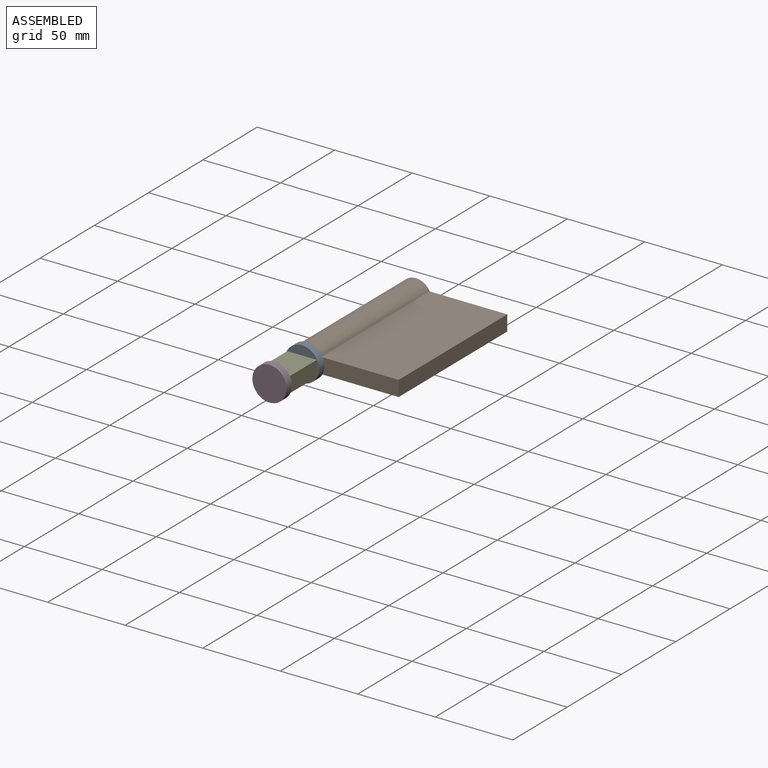
[diagram: assembled view]
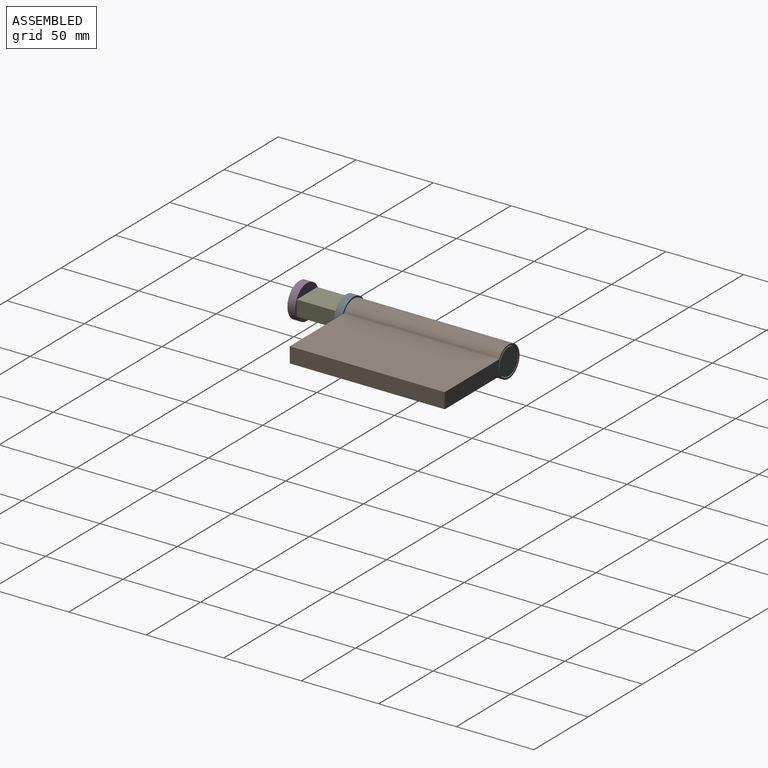
[diagram: assembled view, second angle]
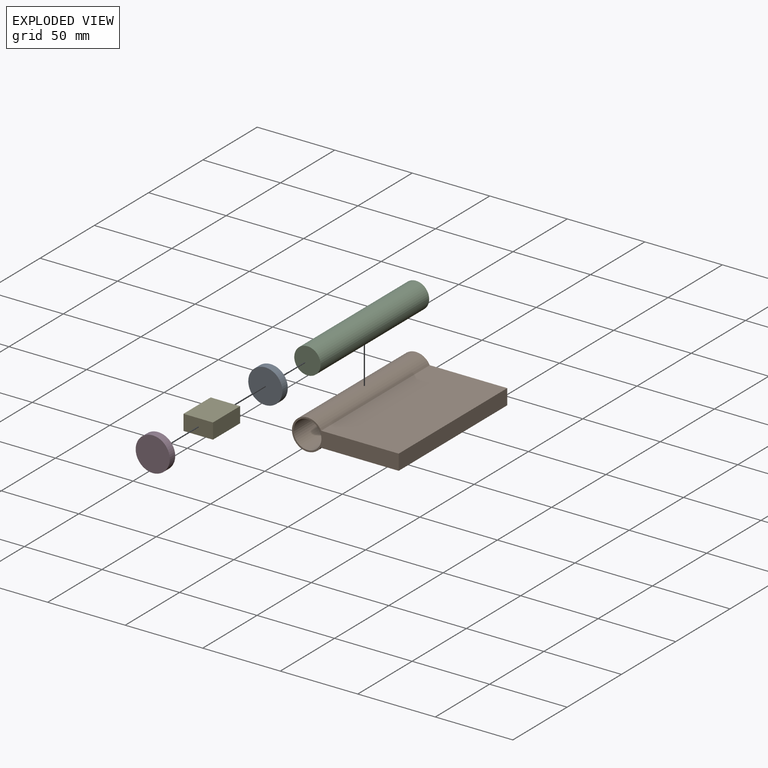
[diagram: exploded view]
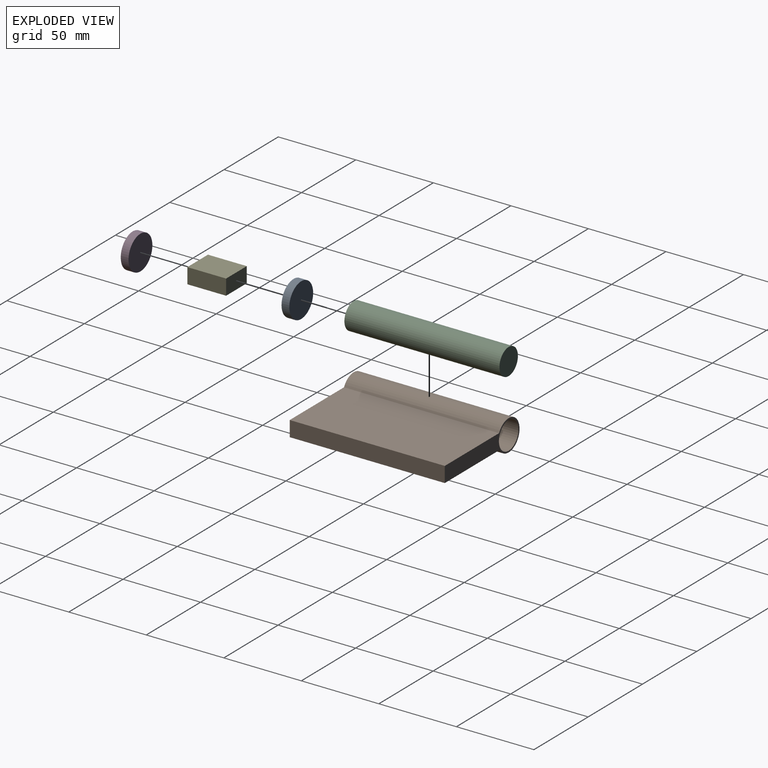
[diagram: exploded view, second angle]
ASSEMBLY  parts=5 mates=4
PART A: 3 faces, bbox 22x5x22 mm
  f0: cylinder r=11mm len=22mm, axis (0,-1,0), area 345.6mm2, adj f1,f2
  f1: plane 22x22mm, normal (0,1,0), area 380.1mm2, adj f0
  f2: plane 22x22mm, normal (0,-1,0), area 380.1mm2, adj f0
PART B: 8 faces, bbox 68.9x100x20 mm
  f0: plane 100x50mm, normal (0,0,-1), area 5000mm2, adj f1,f5,f6,f7
  f1: plane 100x10mm, normal (1,0,0), area 1000mm2, adj f0,f2,f6,f7
  f2: plane 100x49.98mm, normal (0,0,1), area 4998.1mm2, adj f1,f3,f6,f7
  f3: cylinder r=10mm len=100mm, axis (0,-1,0), area 5319.8mm2, adj f2,f5,f6,f7
  f4: cylinder r=9mm len=100mm, axis (0,-1,0), area 5654.9mm2, adj f6,f7
  f5: plane 100x0.73mm, normal (-1,0,0), area 73.4mm2, adj f0,f3,f6,f7
  f6: plane 68.85x20mm, normal (0,1,0), area 552.5mm2, adj f0,f1,f2,f3,f4,f5
  f7: plane 68.85x20mm, normal (0,-1,0), area 552.5mm2, adj f0,f1,f2,f3,f4,f5
PART C: 3 faces, bbox 17x100x17 mm
  f0: cylinder r=8.5mm len=100mm, axis (0,-1,0), area 5340.7mm2, adj f1,f2
  f1: plane 17x17mm, normal (0,1,0), area 227mm2, adj f0
  f2: plane 17x17mm, normal (0,-1,0), area 227mm2, adj f0
PART D: same geometry as A
PART E: 6 faces, bbox 19x25x10 mm
  f0: plane 25x19mm, normal (0,0,1), area 475mm2, adj f1,f3,f4,f5
  f1: plane 25x10mm, normal (-1,0,0), area 250mm2, adj f0,f2,f4,f5
  f2: plane 25x19mm, normal (0,0,-1), area 475mm2, adj f1,f3,f4,f5
  f3: plane 25x10mm, normal (1,0,0), area 250mm2, adj f0,f2,f4,f5
  f4: plane 19x10mm, normal (0,1,0), area 190mm2, adj f0,f1,f2,f3
  f5: plane 19x10mm, normal (0,-1,0), area 190mm2, adj f0,f1,f2,f3
PLACE A t=(-6.53,23.81,-29.9)mm
PLACE B t=(16.18,28.81,-51.38)mm
PLACE C t=(3.57,28.81,-92.25)mm
PLACE D t=(-6.53,-6.19,-29.9)mm
PLACE E t=(12.75,-1.19,-12.75)mm
MATE fastened D.f0 <-> E.f5  axis (0,1,0) through (-42.67,-1.19,-45.99)mm
MATE revolute C.f0 <-> B.f3  axis (0,-1,0) through (-42.67,28.81,-45.99)mm
MATE fastened C.f0 <-> A.f0  axis (0,-1,0) through (-42.67,28.81,-45.99)mm
MATE fastened A.f0 <-> E.f4  axis (0,-1,0) through (-42.67,23.81,-45.99)mm
